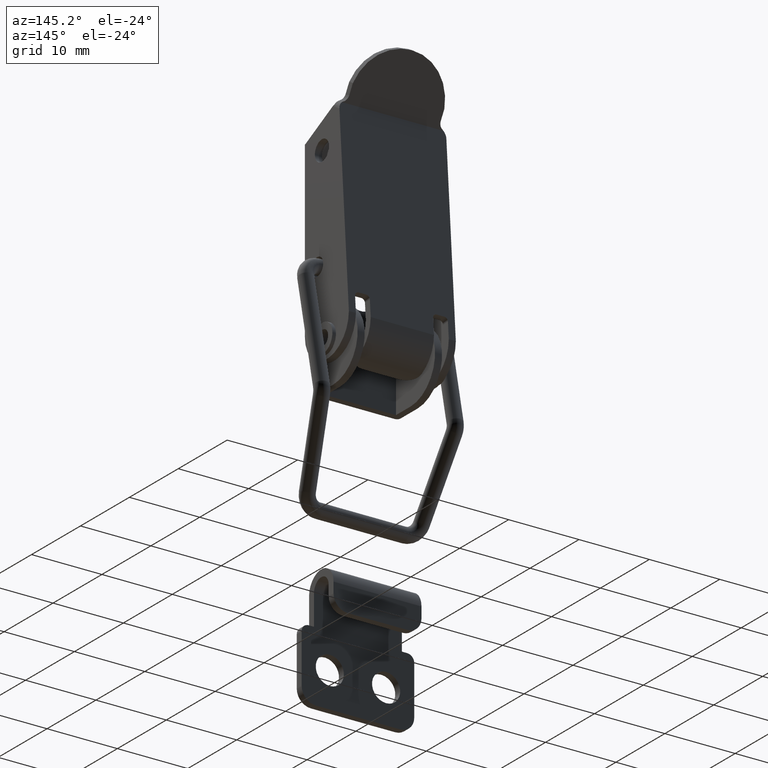
[diagram: clean part render]
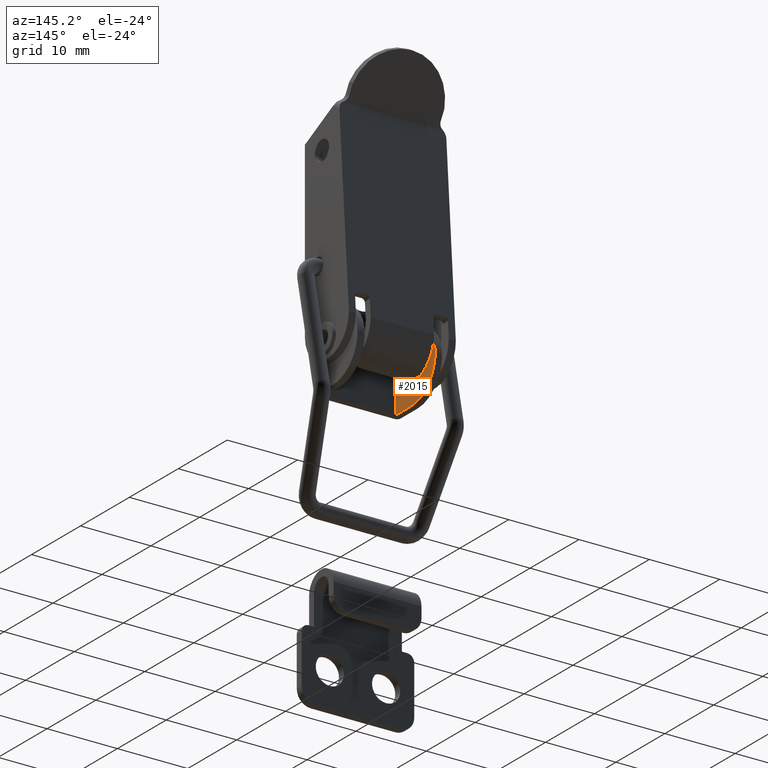
[diagram: same view with one face highlighted and labeled with its STEP entity id]
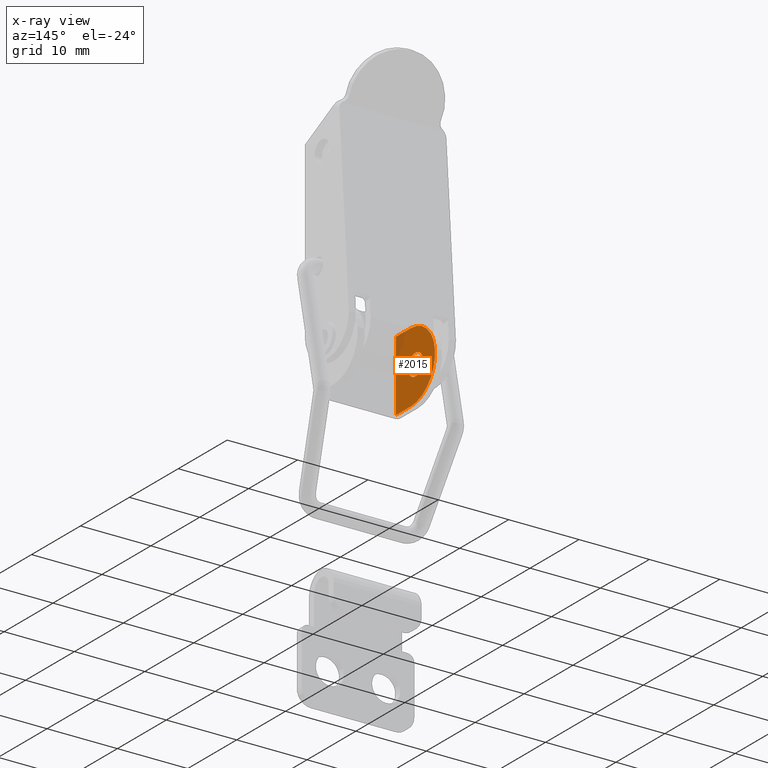
[diagram: x-ray of the same camera — body ghosted, the highlighted face saturated]
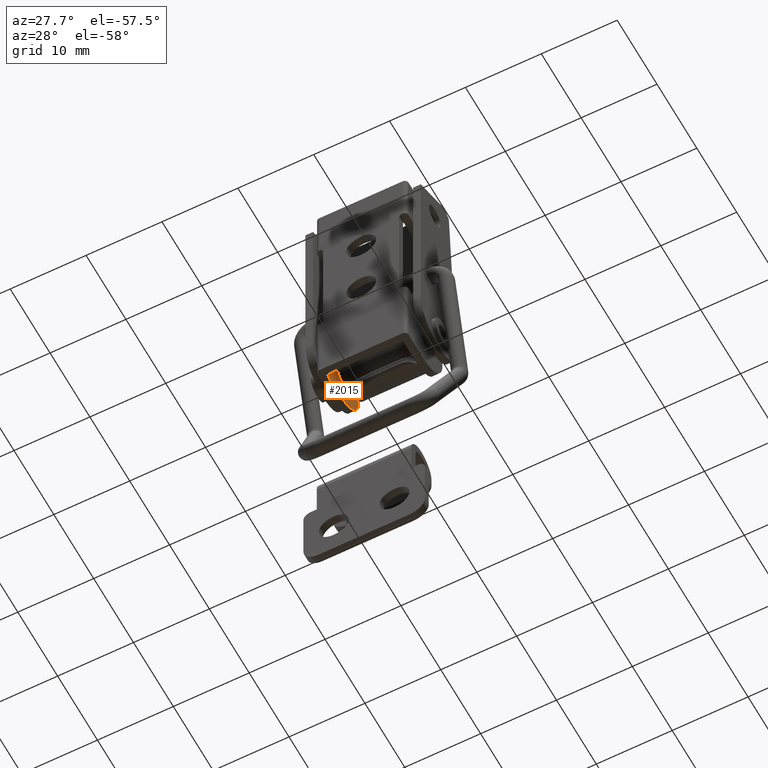
[diagram: same view with one face highlighted and labeled with its STEP entity id]
A machine part, auxiliary view. The second image highlights one B-rep face of the part: STEP entity #2015.
The next image is the same camera in x-ray: the body ghosted, the highlighted face saturated — about 6% of this face is hidden behind the body in this view.
A second angle (auxiliary view) of the same face is appended — the face is thin or edge-on in the first view.
In plain terms, the highlighted planar face has unit normal (1, 0, 0).
Its self-contained STEP definition (entity closure, byte-faithful):
#82=PLANE('',#2174);
#141=LINE('',#3103,#294);
#149=LINE('',#3127,#302);
#174=LINE('',#3193,#327);
#294=VECTOR('',#2448,3.);
#302=VECTOR('',#2468,3.);
#327=VECTOR('',#2541,10.);
#442=FACE_BOUND('',#652,.T.);
#520=FACE_OUTER_BOUND('',#651,.T.);
#651=EDGE_LOOP('',(#1511,#1512,#1513,#1514));
#652=EDGE_LOOP('',(#1515));
#797=CIRCLE('',#2124,1.5);
#820=CIRCLE('',#2171,5.);
#911=VERTEX_POINT('',#3040);
#934=VERTEX_POINT('',#3100);
#935=VERTEX_POINT('',#3102);
#944=VERTEX_POINT('',#3124);
#945=VERTEX_POINT('',#3126);
#1109=EDGE_CURVE('',#911,#911,#797,.T.);
#1138=EDGE_CURVE('',#934,#935,#141,.T.);
#1150=EDGE_CURVE('',#944,#945,#149,.T.);
#1182=EDGE_CURVE('',#935,#944,#820,.T.);
#1184=EDGE_CURVE('',#934,#945,#174,.T.);
#1511=ORIENTED_EDGE('',*,*,#1184,.T.);
#1512=ORIENTED_EDGE('',*,*,#1150,.F.);
#1513=ORIENTED_EDGE('',*,*,#1182,.F.);
#1514=ORIENTED_EDGE('',*,*,#1138,.F.);
#1515=ORIENTED_EDGE('',*,*,#1109,.T.);
#2015=ADVANCED_FACE('',(#520,#442),#82,.T.);
#2124=AXIS2_PLACEMENT_3D('',#3041,#2389,#2390);
#2171=AXIS2_PLACEMENT_3D('',#3189,#2533,#2534);
#2174=AXIS2_PLACEMENT_3D('',#3192,#2539,#2540);
#2389=DIRECTION('center_axis',(-1.,0.,0.));
#2390=DIRECTION('ref_axis',(0.,0.,-1.));
#2448=DIRECTION('',(0.,1.,0.));
#2468=DIRECTION('',(0.,-1.,0.));
#2533=DIRECTION('center_axis',(-1.,0.,0.));
#2534=DIRECTION('ref_axis',(0.,0.,1.));
#2539=DIRECTION('center_axis',(1.,0.,0.));
#2540=DIRECTION('ref_axis',(0.,0.,-1.));
#2541=DIRECTION('',(0.,6.30808536718839E-17,-1.));
#3040=CARTESIAN_POINT('',(-5.,5.,-26.5));
#3041=CARTESIAN_POINT('Origin',(-5.,5.,-28.));
#3100=CARTESIAN_POINT('',(-5.,1.,-23.));
#3102=CARTESIAN_POINT('',(-5.,4.00000000000001,-23.));
#3103=CARTESIAN_POINT('',(-5.,4.44089209850063E-15,-23.));
#3124=CARTESIAN_POINT('',(-5.,4.00000000000001,-33.));
#3126=CARTESIAN_POINT('',(-5.,1.,-33.));
#3127=CARTESIAN_POINT('',(-5.,4.00000000000001,-33.));
#3189=CARTESIAN_POINT('Origin',(-5.,4.00000000000001,-28.));
#3192=CARTESIAN_POINT('Origin',(-5.,5.72170049645755,-28.));
#3193=CARTESIAN_POINT('',(-5.,1.,0.));